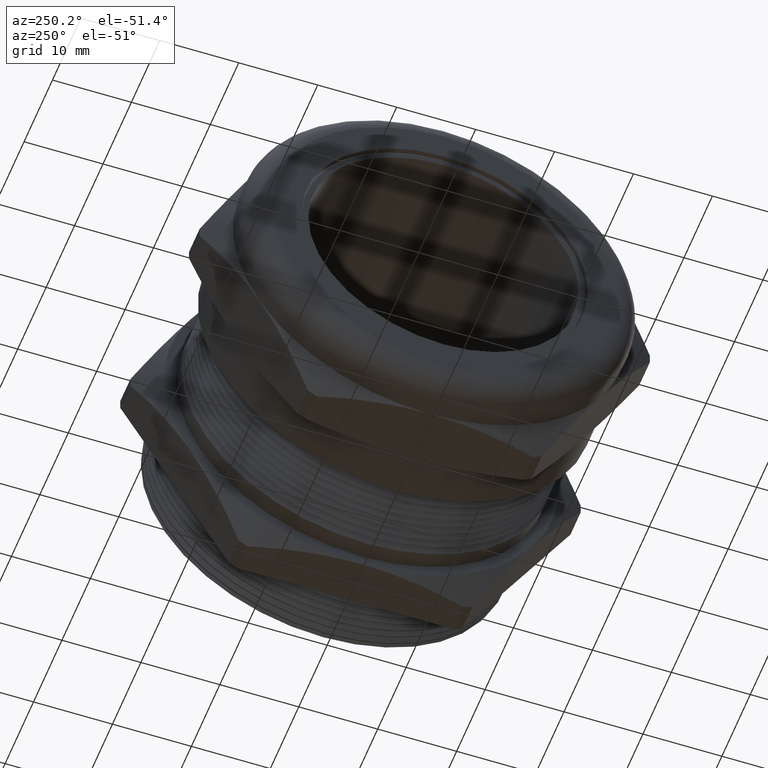
[diagram: clean part render]
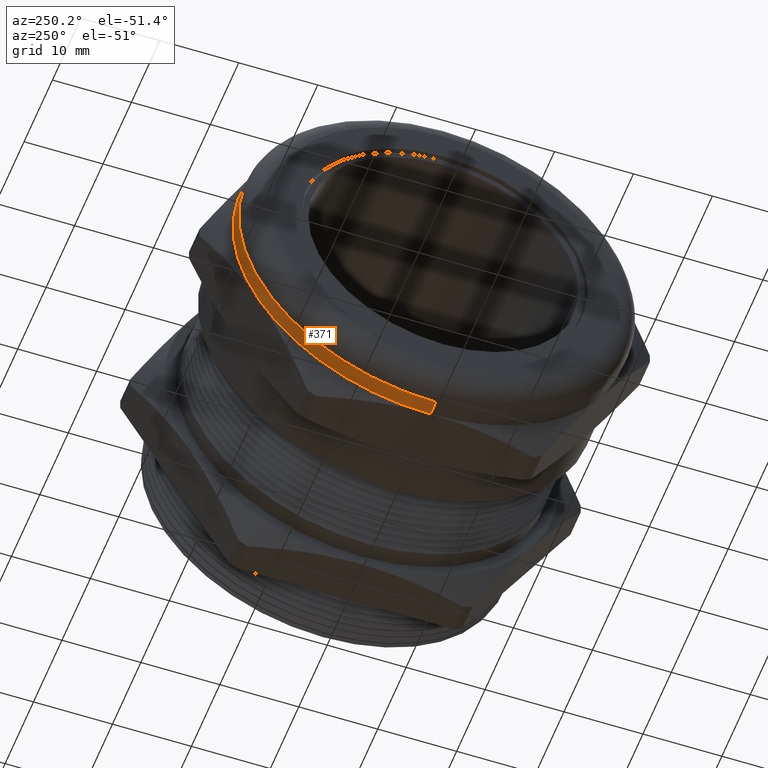
[diagram: same view with one face highlighted and labeled with its STEP entity id]
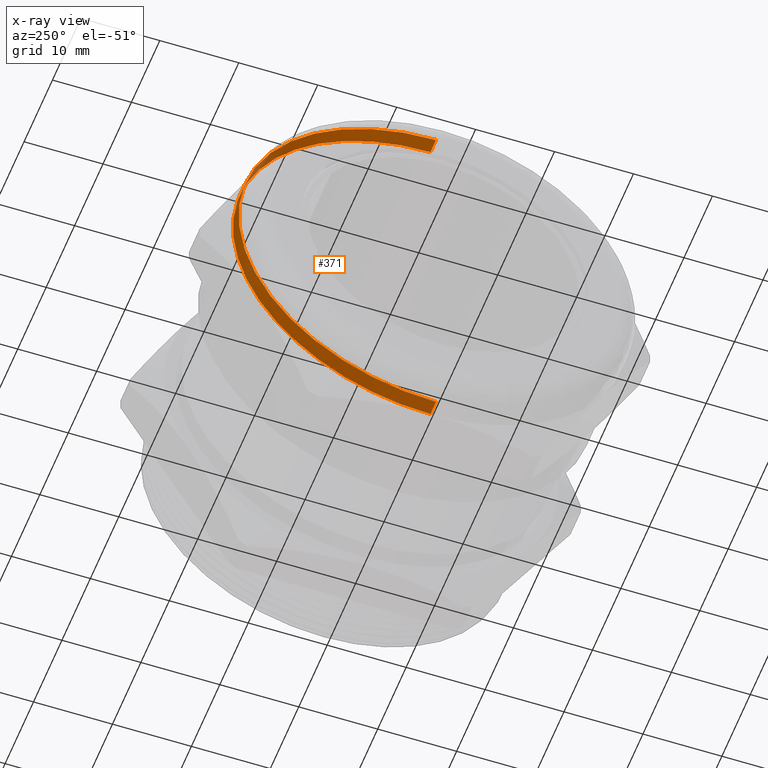
[diagram: x-ray of the same camera — body ghosted, the highlighted face saturated]
A machine part, auxiliary view. The second image highlights one B-rep face of the part: STEP entity #371.
The next image is the same camera in x-ray: the body ghosted, the highlighted face saturated — about 0% of this face is hidden behind the body in this view.
In plain terms, the highlighted cylindrical surface (partial cylindrical patch) has radius 25.019 mm, axis along (-1, 0, 0).
Its self-contained STEP definition (entity closure, byte-faithful):
#106 = ORIENTED_EDGE ( 'NONE', *, *, #390, .T. ) ;
#307 = VERTEX_POINT ( 'NONE', #1344 ) ;
#333 = EDGE_CURVE ( 'NONE', #340, #339, #1434, .T. ) ;
#339 = VERTEX_POINT ( 'NONE', #1419 ) ;
#340 = VERTEX_POINT ( 'NONE', #1418 ) ;
#371 = ADVANCED_FACE ( 'NONE', ( #1475 ), #1474, .T. ) ;
#372 = EDGE_LOOP ( 'NONE', ( #374, #377, #379, #380, #406, #106 ) ) ;
#373 = VERTEX_POINT ( 'NONE', #1531 ) ;
#374 = ORIENTED_EDGE ( 'NONE', *, *, #375, .T. ) ;
#375 = EDGE_CURVE ( 'NONE', #373, #376, #1530, .T. ) ;
#376 = VERTEX_POINT ( 'NONE', #1525 ) ;
#377 = ORIENTED_EDGE ( 'NONE', *, *, #378, .T. ) ;
#378 = EDGE_CURVE ( 'NONE', #376, #340, #1524, .T. ) ;
#379 = ORIENTED_EDGE ( 'NONE', *, *, #333, .T. ) ;
#380 = ORIENTED_EDGE ( 'NONE', *, *, #381, .F. ) ;
#381 = EDGE_CURVE ( 'NONE', #307, #339, #1520, .T. ) ;
#390 = EDGE_CURVE ( 'NONE', #421, #373, #1563, .T. ) ;
#399 = EDGE_CURVE ( 'NONE', #307, #421, #1538, .T. ) ;
#406 = ORIENTED_EDGE ( 'NONE', *, *, #399, .T. ) ;
#421 = VERTEX_POINT ( 'NONE', #1616 ) ;
#1344 = CARTESIAN_POINT ( 'NONE',  ( -0.6434999999999998500, 0.0000000000000000000, 0.9850000000000001000 ) ) ;
#1418 = CARTESIAN_POINT ( 'NONE',  ( -0.7207999999999998900, 1.206277097160143100E-016, -0.9849999999999999900 ) ) ;
#1419 = CARTESIAN_POINT ( 'NONE',  ( -0.7207999999999998900, 0.0000000000000000000, 0.9849999999999999900 ) ) ;
#1430 = DIRECTION ( 'NONE',  ( 0.0000000000000000000, 0.0000000000000000000, -1.000000000000000000 ) ) ;
#1431 = DIRECTION ( 'NONE',  ( 1.000000000000000000, 0.0000000000000000000, 0.0000000000000000000 ) ) ;
#1432 = CARTESIAN_POINT ( 'NONE',  ( -0.7207999999999998900, 0.0000000000000000000, 0.0000000000000000000 ) ) ;
#1433 = AXIS2_PLACEMENT_3D ( 'NONE', #1432, #1431, #1430 ) ;
#1434 = CIRCLE ( 'NONE', #1433, 0.9849999999999999900 ) ;
#1471 = CARTESIAN_POINT ( 'NONE',  ( -2.719493435091831800, 0.0000000000000000000, 0.0000000000000000000 ) ) ;
#1472 = AXIS2_PLACEMENT_3D ( 'NONE', #1471, #1533, #1532 ) ;
#1474 = CYLINDRICAL_SURFACE ( 'NONE', #1472, 0.9849999999999999900 ) ;
#1475 = FACE_OUTER_BOUND ( 'NONE', #372, .T. ) ;
#1517 = DIRECTION ( 'NONE',  ( -1.000000000000000000, 0.0000000000000000000, 0.0000000000000000000 ) ) ;
#1518 = VECTOR ( 'NONE', #1517, 39.37007874015748100 ) ;
#1519 = CARTESIAN_POINT ( 'NONE',  ( -2.719493435091831800, 0.0000000000000000000, 0.9849999999999999900 ) ) ;
#1520 = LINE ( 'NONE', #1519, #1518 ) ;
#1521 = DIRECTION ( 'NONE',  ( -1.000000000000000000, 0.0000000000000000000, 0.0000000000000000000 ) ) ;
#1522 = VECTOR ( 'NONE', #1521, 39.37007874015748100 ) ;
#1523 = CARTESIAN_POINT ( 'NONE',  ( -2.719493435091831800, 1.206277097160143100E-016, -0.9849999999999999900 ) ) ;
#1524 = LINE ( 'NONE', #1523, #1522 ) ;
#1525 = CARTESIAN_POINT ( 'NONE',  ( -0.6434999999999998500, 0.0000000000000000000, -0.9849999999999997600 ) ) ;
#1526 = DIRECTION ( 'NONE',  ( 0.0000000000000000000, 0.0000000000000000000, 1.000000000000000000 ) ) ;
#1527 = DIRECTION ( 'NONE',  ( -1.000000000000000000, 0.0000000000000000000, 0.0000000000000000000 ) ) ;
#1528 = CARTESIAN_POINT ( 'NONE',  ( -0.6434999999999998500, 0.0000000000000000000, 0.0000000000000000000 ) ) ;
#1529 = AXIS2_PLACEMENT_3D ( 'NONE', #1528, #1527, #1526 ) ;
#1530 = CIRCLE ( 'NONE', #1529, 0.9849999999999999900 ) ;
#1531 = CARTESIAN_POINT ( 'NONE',  ( -0.6434999999999998500, 0.8530350227276725100, -0.4924999999999998800 ) ) ;
#1532 = DIRECTION ( 'NONE',  ( 0.0000000000000000000, 0.0000000000000000000, 1.000000000000000000 ) ) ;
#1533 = DIRECTION ( 'NONE',  ( -1.000000000000000000, 0.0000000000000000000, 0.0000000000000000000 ) ) ;
#1534 = DIRECTION ( 'NONE',  ( 0.0000000000000000000, 0.0000000000000000000, 1.000000000000000000 ) ) ;
#1535 = DIRECTION ( 'NONE',  ( -1.000000000000000000, 0.0000000000000000000, 0.0000000000000000000 ) ) ;
#1536 = CARTESIAN_POINT ( 'NONE',  ( -0.6434999999999998500, 0.0000000000000000000, 0.0000000000000000000 ) ) ;
#1537 = AXIS2_PLACEMENT_3D ( 'NONE', #1536, #1535, #1534 ) ;
#1538 = CIRCLE ( 'NONE', #1537, 0.9849999999999999900 ) ;
#1559 = DIRECTION ( 'NONE',  ( 0.0000000000000000000, 0.0000000000000000000, 1.000000000000000000 ) ) ;
#1560 = DIRECTION ( 'NONE',  ( -1.000000000000000000, 0.0000000000000000000, 0.0000000000000000000 ) ) ;
#1561 = CARTESIAN_POINT ( 'NONE',  ( -0.6434999999999998500, 0.0000000000000000000, 0.0000000000000000000 ) ) ;
#1562 = AXIS2_PLACEMENT_3D ( 'NONE', #1561, #1560, #1559 ) ;
#1563 = CIRCLE ( 'NONE', #1562, 0.9849999999999999900 ) ;
#1616 = CARTESIAN_POINT ( 'NONE',  ( -0.6434999999999998500, 0.8530350227276718400, 0.4925000000000001600 ) ) ;